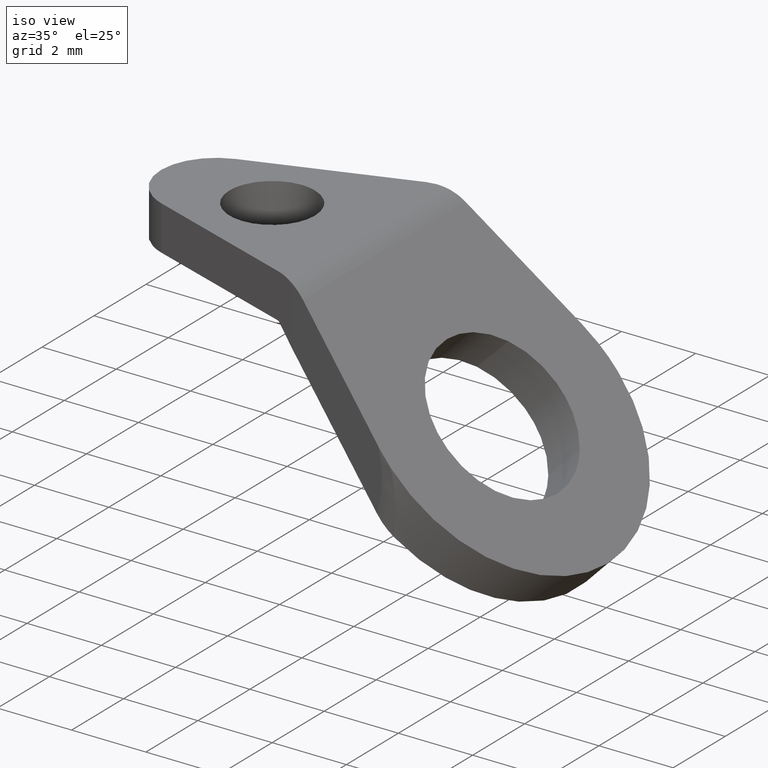
[diagram: clean part render]
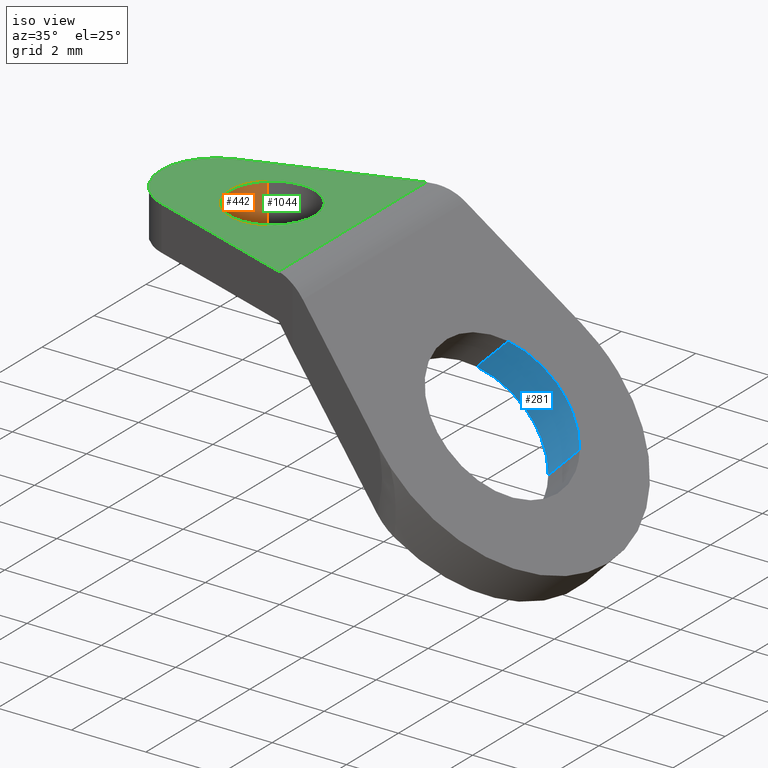
[diagram: same view with three faces highlighted in distinct colors, each labeled with its STEP entity id]
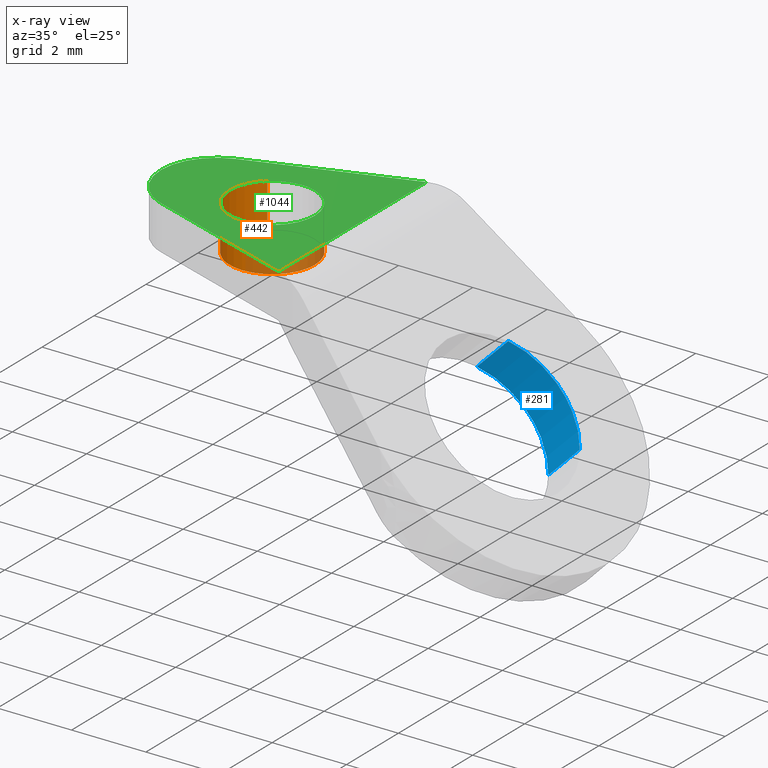
[diagram: x-ray of the same camera — body ghosted, the three highlighted faces saturated]
A machine part, iso view with three faces highlighted in distinct colors.
The next image is the same camera in x-ray (body ghosted, the three faces saturated) — at least one of them is partly hidden behind the body in this view.
Their STEP definitions:

[orange] entity #442 — the highlighted face is a freeform B-spline surface patch.
#282=CARTESIAN_POINT('',(2.257396655860671,0.878088989381535,-1.229999999999980));
#283=CARTESIAN_POINT('',(2.232266126237117,0.856836000716242,-1.229999999999980));
#284=CARTESIAN_POINT('',(2.208392237952183,0.834180526664131,-1.229999999999980));
#285=CARTESIAN_POINT('',(1.374211711288053,0.042572764616314,-1.229999999999980));
#286=CARTESIAN_POINT('',(2.165819473335870,-0.791607762047817,-1.229999999999980));
#287=CARTESIAN_POINT('',(2.957427235383687,-1.625788288711948,-1.229999999999980));
#288=CARTESIAN_POINT('',(3.791607762047817,-0.834180526664131,-1.229999999999980));
#289=CARTESIAN_POINT('',(4.625788288711949,-0.042572764616314,-1.229999999999980));
#290=CARTESIAN_POINT('',(3.834180526664131,0.791607762047817,-1.229999999999980));
#291=CARTESIAN_POINT('',(2.257396655860671,0.878088989381535,0.030749999999999));
#292=CARTESIAN_POINT('',(2.232266126237117,0.856836000716242,0.030749999999999));
#293=CARTESIAN_POINT('',(2.208392237952183,0.834180526664131,0.030749999999999));
#294=CARTESIAN_POINT('',(1.374211711288053,0.042572764616314,0.030749999999999));
#295=CARTESIAN_POINT('',(2.165819473335870,-0.791607762047817,0.030749999999999));
#296=CARTESIAN_POINT('',(2.957427235383687,-1.625788288711948,0.030749999999999));
#297=CARTESIAN_POINT('',(3.791607762047817,-0.834180526664131,0.030749999999999));
#298=CARTESIAN_POINT('',(4.625788288711949,-0.042572764616314,0.030749999999999));
#299=CARTESIAN_POINT('',(3.834180526664131,0.791607762047817,0.030749999999999));
#307=(BOUNDED_SURFACE()B_SPLINE_SURFACE(2,1,((#282,#291),(#283,#292),(#284,#293),(#285,#294),(#286,#295),(#287,#296),(#288,#297),(#289,#298),(#290,#299)),.UNSPECIFIED.,.F.,.F.,.U.)B_SPLINE_SURFACE_WITH_KNOTS((3,2,2,2,3),(2,2),(1.507964473723101,1.570796326794897,3.141592653589793,4.712388980384690,6.283185307179586),(0.0,1.0),.UNSPECIFIED.)GEOMETRIC_REPRESENTATION_ITEM()RATIONAL_B_SPLINE_SURFACE(((0.977505800795127,0.977505800795127),(0.988284271247462,0.988284271247462),(1.0,1.0),(0.707106781186548,0.707106781186548),(1.0,1.0),(0.707106781186548,0.707106781186548),(1.0,1.0),(0.707106781186548,0.707106781186548),(1.0,1.0)))REPRESENTATION_ITEM('')SURFACE());
#308=CARTESIAN_POINT('',(2.257396645125303,0.878089011284641,7.055269E-014));
#309=VERTEX_POINT('',#308);
#310=CARTESIAN_POINT('',(1.850000000000000,0.0,0.0));
#311=VERTEX_POINT('',#310);
#312=CARTESIAN_POINT('',(2.257396645125303,0.878089011284641,7.055269E-014));
#313=CARTESIAN_POINT('',(2.205739655755665,0.834409049767631,6.704310E-014));
#314=CARTESIAN_POINT('',(2.106488754161795,0.734187037332183,5.899046E-014));
#315=CARTESIAN_POINT('',(2.003593784084637,0.582910930296180,4.683573E-014));
#316=CARTESIAN_POINT('',(1.922328658117667,0.413810355659557,3.324883E-014));
#317=CARTESIAN_POINT('',(1.865422351817475,0.228962214507167,1.839666E-014));
#318=CARTESIAN_POINT('',(1.849990564951824,0.078056974173385,6.271721E-015));
#319=CARTESIAN_POINT('',(1.850000000000000,0.0,0.0));
#320=B_SPLINE_CURVE_WITH_KNOTS('',3,(#312,#313,#314,#315,#316,#317,#318,#319),.UNSPECIFIED.,.F.,.U.,(4,1,1,1,1,4),(8.340091E-010,0.202948166690167,0.421507957822102,0.546398815371974,0.764958567454687,0.999129553539077),.UNSPECIFIED.);
#321=EDGE_CURVE('',#309,#311,#320,.T.);
#322=ORIENTED_EDGE('',*,*,#321,.T.);
#323=CARTESIAN_POINT('',(3.000000095957994,-1.149999999999996,0.0));
#324=VERTEX_POINT('',#323);
#325=CARTESIAN_POINT('',(1.850000000000000,0.0,0.0));
#326=CARTESIAN_POINT('',(1.849995733737299,-0.065858072393993,0.0));
#327=CARTESIAN_POINT('',(1.861747765889902,-0.202279214433078,0.0));
#328=CARTESIAN_POINT('',(1.913490659430036,-0.393828322367740,0.0));
#329=CARTESIAN_POINT('',(1.999128393121927,-0.577801947036770,0.0));
#330=CARTESIAN_POINT('',(2.117767285601492,-0.748482472238805,0.0));
#331=CARTESIAN_POINT('',(2.259864293263415,-0.887127909800027,0.0));
#332=CARTESIAN_POINT('',(2.399240345833364,-0.984003244344043,0.0));
#333=CARTESIAN_POINT('',(2.540972832545994,-1.058651287191979,0.0));
#334=CARTESIAN_POINT('',(2.736577365121380,-1.128646108393713,0.0));
#335=CARTESIAN_POINT('',(2.901208784982607,-1.150031352093002,0.0));
#336=CARTESIAN_POINT('',(3.000000095957994,-1.149999999999996,0.0));
#337=B_SPLINE_CURVE_WITH_KNOTS('',3,(#325,#326,#327,#328,#329,#330,#331,#332,#333,#334,#335,#336),.UNSPECIFIED.,.F.,.U.,(4,1,1,1,1,1,1,1,1,4),(4.992136E-009,0.197575024575579,0.409268626623058,0.592735034149310,0.804428561336172,1.030224961049210,1.185466359655716,1.312481819270492,1.510061111307852,1.806427164390308),.UNSPECIFIED.);
#338=EDGE_CURVE('',#311,#324,#337,.T.);
#339=ORIENTED_EDGE('',*,*,#338,.T.);
#340=CARTESIAN_POINT('',(4.150000000000000,0.0,0.0));
#341=VERTEX_POINT('',#340);
#342=CARTESIAN_POINT('',(3.000000095957994,-1.149999999999996,0.0));
#343=CARTESIAN_POINT('',(3.084676736940991,-1.150015389845509,0.0));
#344=CARTESIAN_POINT('',(3.230500345942492,-1.133818323438868,0.0));
#345=CARTESIAN_POINT('',(3.419813912129487,-1.075113972273720,0.0));
#346=CARTESIAN_POINT('',(3.594062878223517,-0.991398826243255,0.0));
#347=CARTESIAN_POINT('',(3.755772611346387,-0.876019656899940,0.0));
#348=CARTESIAN_POINT('',(3.892507548240860,-0.732390550343694,0.0));
#349=CARTESIAN_POINT('',(3.984003456334133,-0.600759882569647,0.0));
#350=CARTESIAN_POINT('',(4.058651018011729,-0.459027276261695,0.0));
#351=CARTESIAN_POINT('',(4.128648193416655,-0.263423018173053,0.0));
#352=CARTESIAN_POINT('',(4.150029215653207,-0.098791068567639,0.0));
#353=CARTESIAN_POINT('',(4.150000000000000,0.0,0.0));
#354=B_SPLINE_CURVE_WITH_KNOTS('',3,(#342,#343,#344,#345,#346,#347,#348,#349,#350,#351,#352,#353),.UNSPECIFIED.,.F.,.U.,(4,1,1,1,1,1,1,1,1,4),(5.024718E-009,0.254027866407136,0.437494011310621,0.592734998670223,0.832653790514736,1.030224899312096,1.185466288636504,1.312481740666482,1.510061020858998,1.806427056222610),.UNSPECIFIED.);
#355=EDGE_CURVE('',#324,#341,#354,.T.);
#356=ORIENTED_EDGE('',*,*,#355,.T.);
#357=CARTESIAN_POINT('',(3.834180503765110,0.791607751375618,-1.140702E-013));
#358=VERTEX_POINT('',#357);
#359=CARTESIAN_POINT('',(4.150000000000000,0.0,0.0));
#360=CARTESIAN_POINT('',(4.150022462674238,0.090950465830037,-1.310591E-014));
#361=CARTESIAN_POINT('',(4.129931282624750,0.259192954954590,-3.734955E-014));
#362=CARTESIAN_POINT('',(4.058683431471126,0.461849181622735,-6.655220E-014));
#363=CARTESIAN_POINT('',(3.962890267030388,0.637916348440517,-9.192337E-014));
#364=CARTESIAN_POINT('',(3.887403634095691,0.735539420084780,-1.059908E-013));
#365=CARTESIAN_POINT('',(3.834180503765110,0.791607751375618,-1.140702E-013));
#366=B_SPLINE_CURVE_WITH_KNOTS('',3,(#359,#360,#361,#362,#363,#364,#365),.UNSPECIFIED.,.F.,.U.,(4,1,1,1,4),(1.860830E-009,0.272846283516833,0.504762820959792,0.641187224535713,0.873106076452951),.UNSPECIFIED.);
#367=EDGE_CURVE('',#341,#358,#366,.T.);
#368=ORIENTED_EDGE('',*,*,#367,.T.);
#369=CARTESIAN_POINT('',(3.834180503832417,0.791607751304693,-1.199999999999980));
#370=VERTEX_POINT('',#369);
#371=CARTESIAN_POINT('',(3.834180503832417,0.791607751304693,-1.199999999999980));
#372=CARTESIAN_POINT('',(3.834180503765110,0.791607751375618,-1.140702E-013));
#373=QUASI_UNIFORM_CURVE('',1,(#371,#372),.UNSPECIFIED.,.F.,.U.);
#374=EDGE_CURVE('',#370,#358,#373,.T.);
#375=ORIENTED_EDGE('',*,*,#374,.F.);
#376=CARTESIAN_POINT('',(4.150000000000000,0.0,-1.199999999999980));
#377=VERTEX_POINT('',#376);
#378=CARTESIAN_POINT('',(4.150000000000000,0.0,-1.199999999999980));
#379=CARTESIAN_POINT('',(4.150041179042349,0.109143095378135,-1.199999999999980));
#380=CARTESIAN_POINT('',(4.125864477503170,0.277370279307372,-1.199999999999977));
#381=CARTESIAN_POINT('',(4.046737304727824,0.486384003738563,-1.199999999999982));
#382=CARTESIAN_POINT('',(3.957701196718726,0.645526566593393,-1.199999999999978));
#383=CARTESIAN_POINT('',(3.881138719804661,0.742133393169809,-1.199999999999981));
#384=CARTESIAN_POINT('',(3.834180503832417,0.791607751304693,-1.199999999999980));
#385=B_SPLINE_CURVE_WITH_KNOTS('',3,(#378,#379,#380,#381,#382,#383,#384),.UNSPECIFIED.,.F.,.U.,(4,1,1,1,4),(1.860482E-009,0.327414858045688,0.504762820903208,0.668471890999660,0.873106076355171),.UNSPECIFIED.);
#386=EDGE_CURVE('',#377,#370,#385,.T.);
#387=ORIENTED_EDGE('',*,*,#386,.F.);
#388=CARTESIAN_POINT('',(3.000000095957994,-1.149999999999996,-1.199999999999980));
#389=VERTEX_POINT('',#388);
#390=CARTESIAN_POINT('',(3.000000095957994,-1.149999999999996,-1.199999999999980));
#391=CARTESIAN_POINT('',(3.084676736940991,-1.150015389845509,-1.199999999999977));
#392=CARTESIAN_POINT('',(3.230500345942492,-1.133818323438868,-1.199999999999988));
#393=CARTESIAN_POINT('',(3.419813912129487,-1.075113972273720,-1.199999999999974));
#394=CARTESIAN_POINT('',(3.594062878223517,-0.991398826243255,-1.199999999999986));
#395=CARTESIAN_POINT('',(3.755772611346387,-0.876019656899940,-1.199999999999991));
#396=CARTESIAN_POINT('',(3.892507548240860,-0.732390550343694,-1.199999999999969));
#397=CARTESIAN_POINT('',(3.984003456334133,-0.600759882569647,-1.199999999999989));
#398=CARTESIAN_POINT('',(4.058651018011729,-0.459027276261695,-1.199999999999964));
#399=CARTESIAN_POINT('',(4.128648193416655,-0.263423018173053,-1.199999999999990));
#400=CARTESIAN_POINT('',(4.150029215653207,-0.098791068567639,-1.199999999999980));
#401=CARTESIAN_POINT('',(4.150000000000000,0.0,-1.199999999999980));
#402=B_SPLINE_CURVE_WITH_KNOTS('',3,(#390,#391,#392,#393,#394,#395,#396,#397,#398,#399,#400,#401),.UNSPECIFIED.,.F.,.U.,(4,1,1,1,1,1,1,1,1,4),(5.024718E-009,0.254027866407136,0.437494011310621,0.592734998670223,0.832653790514736,1.030224899312096,1.185466288636504,1.312481740666482,1.510061020858998,1.806427056222610),.UNSPECIFIED.);
#403=EDGE_CURVE('',#389,#377,#402,.T.);
#404=ORIENTED_EDGE('',*,*,#403,.F.);
#405=CARTESIAN_POINT('',(1.850000000000000,0.0,-1.199999999999980));
#406=VERTEX_POINT('',#405);
#407=CARTESIAN_POINT('',(1.850000000000000,0.0,-1.199999999999980));
#408=CARTESIAN_POINT('',(1.849995733737299,-0.065858072393993,-1.199999999999984));
#409=CARTESIAN_POINT('',(1.861747765889902,-0.202279214433078,-1.199999999999970));
#410=CARTESIAN_POINT('',(1.913490659430036,-0.393828322367740,-1.199999999999982));
#411=CARTESIAN_POINT('',(1.999128393121927,-0.577801947036770,-1.199999999999982));
#412=CARTESIAN_POINT('',(2.117767285601492,-0.748482472238805,-1.199999999999976));
#413=CARTESIAN_POINT('',(2.259864293263415,-0.887127909800027,-1.199999999999981));
#414=CARTESIAN_POINT('',(2.399240345833364,-0.984003244344044,-1.199999999999982));
#415=CARTESIAN_POINT('',(2.540972832545994,-1.058651287191978,-1.199999999999974));
#416=CARTESIAN_POINT('',(2.736577365121380,-1.128646108393714,-1.200000000000002));
#417=CARTESIAN_POINT('',(2.901208784982607,-1.150031352093001,-1.199999999999960));
#418=CARTESIAN_POINT('',(3.000000095957994,-1.149999999999996,-1.199999999999980));
#419=B_SPLINE_CURVE_WITH_KNOTS('',3,(#407,#408,#409,#410,#411,#412,#413,#414,#415,#416,#417,#418),.UNSPECIFIED.,.F.,.U.,(4,1,1,1,1,1,1,1,1,4),(4.992136E-009,0.197575024575579,0.409268626623058,0.592735034149310,0.804428561336172,1.030224961049210,1.185466359655716,1.312481819270492,1.510061111307852,1.806427164390308),.UNSPECIFIED.);
#420=EDGE_CURVE('',#406,#389,#419,.T.);
#421=ORIENTED_EDGE('',*,*,#420,.F.);
#422=CARTESIAN_POINT('',(2.257396645068195,0.878089011236345,-1.199999999999980));
#423=VERTEX_POINT('',#422);
#424=CARTESIAN_POINT('',(2.257396645068195,0.878089011236345,-1.199999999999980));
#425=CARTESIAN_POINT('',(2.181883247451196,0.814261692237525,-1.199999999999981));
#426=CARTESIAN_POINT('',(2.079331976542018,0.701849605720580,-1.199999999999977));
#427=CARTESIAN_POINT('',(1.968842865710617,0.518754804333681,-1.199999999999984));
#428=CARTESIAN_POINT('',(1.908761001808731,0.374106287659650,-1.199999999999974));
#429=CARTESIAN_POINT('',(1.862236691786223,0.197738380726222,-1.199999999999983));
#430=CARTESIAN_POINT('',(1.849987245462916,0.078057744320814,-1.199999999999979));
#431=CARTESIAN_POINT('',(1.850000000000000,0.0,-1.199999999999980));
#432=B_SPLINE_CURVE_WITH_KNOTS('',3,(#424,#425,#426,#427,#428,#429,#430,#431),.UNSPECIFIED.,.F.,.U.,(4,1,1,1,1,4),(8.339613E-010,0.296616611308585,0.452730738969260,0.640067260002258,0.764958567397399,0.999129553464286),.UNSPECIFIED.);
#433=EDGE_CURVE('',#423,#406,#432,.T.);
#434=ORIENTED_EDGE('',*,*,#433,.F.);
#435=CARTESIAN_POINT('',(2.257396645068195,0.878089011236345,-1.199999999999980));
#436=CARTESIAN_POINT('',(2.257396645125303,0.878089011284641,7.055269E-014));
#437=QUASI_UNIFORM_CURVE('',1,(#435,#436),.UNSPECIFIED.,.F.,.U.);
#438=EDGE_CURVE('',#423,#309,#437,.T.);
#439=ORIENTED_EDGE('',*,*,#438,.T.);
#440=EDGE_LOOP('',(#322,#339,#356,#368,#375,#387,#404,#421,#434,#439));
#441=FACE_OUTER_BOUND('',#440,.T.);
#442=ADVANCED_FACE('',(#441),#307,.F.);

[blue] entity #281 — the highlighted face is a freeform B-spline surface patch.
#70=CARTESIAN_POINT('',(8.235591850579276,1.603466874816024,-2.574574850578886));
#71=VERTEX_POINT('',#70);
#122=CARTESIAN_POINT('',(10.271595845243260,1.445544581322798,-4.610578845243389));
#123=VERTEX_POINT('',#122);
#136=CARTESIAN_POINT('',(9.423067845222908,1.445544581353193,-5.459106845222951));
#137=VERTEX_POINT('',#136);
#138=CARTESIAN_POINT('',(9.423067845222908,1.445544581353193,-5.459106845222951));
#139=CARTESIAN_POINT('',(10.271595845243260,1.445544581322798,-4.610578845243389));
#140=QUASI_UNIFORM_CURVE('',1,(#138,#139),.UNSPECIFIED.,.F.,.U.);
#141=EDGE_CURVE('',#137,#123,#140,.T.);
#194=CARTESIAN_POINT('',(7.387063850608470,1.603466874851186,-3.423102850608493));
#195=VERTEX_POINT('',#194);
#208=CARTESIAN_POINT('',(7.387063850608470,1.603466874851186,-3.423102850608493));
#209=CARTESIAN_POINT('',(8.235591850579276,1.603466874816024,-2.574574850578886));
#210=QUASI_UNIFORM_CURVE('',1,(#208,#209),.UNSPECIFIED.,.F.,.U.);
#211=EDGE_CURVE('',#195,#71,#210,.T.);
#216=CARTESIAN_POINT('',(9.401854662201101,1.445544608956883,-5.480320062201150));
#217=CARTESIAN_POINT('',(8.436579642699968,2.884065152167646,-4.515045042700018));
#218=CARTESIAN_POINT('',(7.365850669355479,1.603466850174976,-3.444316069355526));
#219=CARTESIAN_POINT('',(10.293339392201130,1.445544608956883,-4.588835332201121));
#220=CARTESIAN_POINT('',(9.328064372699995,2.884065152167646,-3.623560312699989));
#221=CARTESIAN_POINT('',(8.257335399355505,1.603466850174976,-2.552831339355498));
#229=(BOUNDED_SURFACE()B_SPLINE_SURFACE(2,1,((#216,#219),(#217,#220),(#218,#221)),.UNSPECIFIED.,.F.,.F.,.U.)B_SPLINE_SURFACE_WITH_KNOTS((3,3),(2,2),(0.0,3.339301473288457),(0.0,1.0),.UNSPECIFIED.)GEOMETRIC_REPRESENTATION_ITEM()RATIONAL_B_SPLINE_SURFACE(((1.0,1.0),(0.718822509939086,0.718822509939086),(0.977505800795127,0.977505800795127)))REPRESENTATION_ITEM('')SURFACE());
#230=CARTESIAN_POINT('',(9.194469772106512,2.099999999999995,-3.533452772106522));
#231=VERTEX_POINT('',#230);
#232=CARTESIAN_POINT('',(9.194469772106512,2.099999999999995,-3.533452772106522));
#233=CARTESIAN_POINT('',(9.066879292262605,2.100056053855538,-3.405862292262545));
#234=CARTESIAN_POINT('',(8.847016053984845,2.059662648529355,-3.185999053984734));
#235=CARTESIAN_POINT('',(8.590998657658798,1.927081717747472,-2.929981657658548));
#236=CARTESIAN_POINT('',(8.397388278274454,1.778788508760363,-2.736371278274129));
#237=CARTESIAN_POINT('',(8.293626167466236,1.672884656095484,-2.632609167465882));
#238=CARTESIAN_POINT('',(8.235591850579276,1.603466874816024,-2.574574850578886));
#239=B_SPLINE_CURVE_WITH_KNOTS('',3,(#232,#233,#234,#235,#236,#237,#238),.UNSPECIFIED.,.F.,.U.,(4,1,1,1,4),(1.447692E-009,0.541305286131632,0.932885312346121,1.151711643646799,1.474190597031978),.UNSPECIFIED.);
#240=EDGE_CURVE('',#231,#71,#239,.T.);
#241=ORIENTED_EDGE('',*,*,#240,.T.);
#242=ORIENTED_EDGE('',*,*,#211,.F.);
#243=CARTESIAN_POINT('',(8.345941772106503,2.099999999999995,-4.381980772106536));
#244=VERTEX_POINT('',#243);
#245=CARTESIAN_POINT('',(8.345941772106503,2.099999999999995,-4.381980772106536));
#246=CARTESIAN_POINT('',(8.248215121006890,2.100017859244201,-4.284254121006932));
#247=CARTESIAN_POINT('',(8.077199154408342,2.076034449428291,-4.113238154408362));
#248=CARTESIAN_POINT('',(7.833318996703436,1.980033937789083,-3.869357996703446));
#249=CARTESIAN_POINT('',(7.605308864348141,1.833016570318219,-3.641347864348222));
#250=CARTESIAN_POINT('',(7.459604301694251,1.690244323089863,-3.495643301694235));
#251=CARTESIAN_POINT('',(7.387063850608470,1.603466874851186,-3.423102850608493));
#252=B_SPLINE_CURVE_WITH_KNOTS('',3,(#245,#246,#247,#248,#249,#250,#251),.UNSPECIFIED.,.F.,.U.,(4,1,1,1,4),(1.445442E-009,0.414616345837987,0.725580396706756,1.071091487163234,1.474190596977527),.UNSPECIFIED.);
#253=EDGE_CURVE('',#244,#195,#252,.T.);
#254=ORIENTED_EDGE('',*,*,#253,.F.);
#255=CARTESIAN_POINT('',(9.423067845222908,1.445544581353193,-5.459106845222951));
#256=CARTESIAN_POINT('',(9.379862834312775,1.509934334927992,-5.415901834312821));
#257=CARTESIAN_POINT('',(9.278450192443749,1.643056901295816,-5.314489192443799));
#258=CARTESIAN_POINT('',(9.115772546605246,1.803399538807697,-5.151811546605281));
#259=CARTESIAN_POINT('',(8.936585758041426,1.932873561495448,-4.972624758041469));
#260=CARTESIAN_POINT('',(8.747185158801964,2.029306440088177,-4.783224158801970));
#261=CARTESIAN_POINT('',(8.546797087727617,2.087602493734043,-4.582836087727698));
#262=CARTESIAN_POINT('',(8.408708824724569,2.100002406297277,-4.444747824724555));
#263=CARTESIAN_POINT('',(8.345941772106503,2.099999999999995,-4.381980772106536));
#264=B_SPLINE_CURVE_WITH_KNOTS('',3,(#255,#256,#257,#258,#259,#260,#261,#262,#263),.UNSPECIFIED.,.F.,.U.,(4,1,1,1,1,1,4),(2.173743E-009,0.266298497328501,0.585860007901818,0.838845993157167,1.118456998212548,1.438018508786107,1.704317003941959),.UNSPECIFIED.);
#265=EDGE_CURVE('',#137,#244,#264,.T.);
#266=ORIENTED_EDGE('',*,*,#265,.F.);
#267=ORIENTED_EDGE('',*,*,#141,.T.);
#268=CARTESIAN_POINT('',(10.271595845243260,1.445544581322798,-4.610578845243389));
#269=CARTESIAN_POINT('',(10.195999765071640,1.558248831821021,-4.534982765071733));
#270=CARTESIAN_POINT('',(10.051142291953610,1.730944371487500,-4.390125291953767));
#271=CARTESIAN_POINT('',(9.809408547955144,1.922356886032685,-4.148391547955160));
#272=CARTESIAN_POINT('',(9.619465140279223,2.018096273693524,-3.958448140279300));
#273=CARTESIAN_POINT('',(9.411013806665050,2.083624745943762,-3.749996806665094));
#274=CARTESIAN_POINT('',(9.285483291861102,2.100014594720554,-3.624466291861141));
#275=CARTESIAN_POINT('',(9.194469772106512,2.099999999999995,-3.533452772106522));
#276=B_SPLINE_CURVE_WITH_KNOTS('',3,(#268,#269,#270,#271,#272,#273,#274,#275),.UNSPECIFIED.,.F.,.U.,(4,1,1,1,1,4),(2.172594E-009,0.466024286069416,0.798900981733146,1.171717897145276,1.318182786975217,1.704317003983862),.UNSPECIFIED.);
#277=EDGE_CURVE('',#123,#231,#276,.T.);
#278=ORIENTED_EDGE('',*,*,#277,.T.);
#279=EDGE_LOOP('',(#241,#242,#254,#266,#267,#278));
#280=FACE_OUTER_BOUND('',#279,.T.);
#281=ADVANCED_FACE('',(#280),#229,.F.);

[green] entity #1044 — the highlighted face is a freeform B-spline surface patch.
#308=CARTESIAN_POINT('',(2.257396645125303,0.878089011284641,7.055269E-014));
#309=VERTEX_POINT('',#308);
#310=CARTESIAN_POINT('',(1.850000000000000,0.0,0.0));
#311=VERTEX_POINT('',#310);
#312=CARTESIAN_POINT('',(2.257396645125303,0.878089011284641,7.055269E-014));
#313=CARTESIAN_POINT('',(2.205739655755665,0.834409049767631,6.704310E-014));
#314=CARTESIAN_POINT('',(2.106488754161795,0.734187037332183,5.899046E-014));
#315=CARTESIAN_POINT('',(2.003593784084637,0.582910930296180,4.683573E-014));
#316=CARTESIAN_POINT('',(1.922328658117667,0.413810355659557,3.324883E-014));
#317=CARTESIAN_POINT('',(1.865422351817475,0.228962214507167,1.839666E-014));
#318=CARTESIAN_POINT('',(1.849990564951824,0.078056974173385,6.271721E-015));
#319=CARTESIAN_POINT('',(1.850000000000000,0.0,0.0));
#320=B_SPLINE_CURVE_WITH_KNOTS('',3,(#312,#313,#314,#315,#316,#317,#318,#319),.UNSPECIFIED.,.F.,.U.,(4,1,1,1,1,4),(8.340091E-010,0.202948166690167,0.421507957822102,0.546398815371974,0.764958567454687,0.999129553539077),.UNSPECIFIED.);
#321=EDGE_CURVE('',#309,#311,#320,.T.);
#323=CARTESIAN_POINT('',(3.000000095957994,-1.149999999999996,0.0));
#324=VERTEX_POINT('',#323);
#325=CARTESIAN_POINT('',(1.850000000000000,0.0,0.0));
#326=CARTESIAN_POINT('',(1.849995733737299,-0.065858072393993,0.0));
#327=CARTESIAN_POINT('',(1.861747765889902,-0.202279214433078,0.0));
#328=CARTESIAN_POINT('',(1.913490659430036,-0.393828322367740,0.0));
#329=CARTESIAN_POINT('',(1.999128393121927,-0.577801947036770,0.0));
#330=CARTESIAN_POINT('',(2.117767285601492,-0.748482472238805,0.0));
#331=CARTESIAN_POINT('',(2.259864293263415,-0.887127909800027,0.0));
#332=CARTESIAN_POINT('',(2.399240345833364,-0.984003244344043,0.0));
#333=CARTESIAN_POINT('',(2.540972832545994,-1.058651287191979,0.0));
#334=CARTESIAN_POINT('',(2.736577365121380,-1.128646108393713,0.0));
#335=CARTESIAN_POINT('',(2.901208784982607,-1.150031352093002,0.0));
#336=CARTESIAN_POINT('',(3.000000095957994,-1.149999999999996,0.0));
#337=B_SPLINE_CURVE_WITH_KNOTS('',3,(#325,#326,#327,#328,#329,#330,#331,#332,#333,#334,#335,#336),.UNSPECIFIED.,.F.,.U.,(4,1,1,1,1,1,1,1,1,4),(4.992136E-009,0.197575024575579,0.409268626623058,0.592735034149310,0.804428561336172,1.030224961049210,1.185466359655716,1.312481819270492,1.510061111307852,1.806427164390308),.UNSPECIFIED.);
#338=EDGE_CURVE('',#311,#324,#337,.T.);
#340=CARTESIAN_POINT('',(4.150000000000000,0.0,0.0));
#341=VERTEX_POINT('',#340);
#342=CARTESIAN_POINT('',(3.000000095957994,-1.149999999999996,0.0));
#343=CARTESIAN_POINT('',(3.084676736940991,-1.150015389845509,0.0));
#344=CARTESIAN_POINT('',(3.230500345942492,-1.133818323438868,0.0));
#345=CARTESIAN_POINT('',(3.419813912129487,-1.075113972273720,0.0));
#346=CARTESIAN_POINT('',(3.594062878223517,-0.991398826243255,0.0));
#347=CARTESIAN_POINT('',(3.755772611346387,-0.876019656899940,0.0));
#348=CARTESIAN_POINT('',(3.892507548240860,-0.732390550343694,0.0));
#349=CARTESIAN_POINT('',(3.984003456334133,-0.600759882569647,0.0));
#350=CARTESIAN_POINT('',(4.058651018011729,-0.459027276261695,0.0));
#351=CARTESIAN_POINT('',(4.128648193416655,-0.263423018173053,0.0));
#352=CARTESIAN_POINT('',(4.150029215653207,-0.098791068567639,0.0));
#353=CARTESIAN_POINT('',(4.150000000000000,0.0,0.0));
#354=B_SPLINE_CURVE_WITH_KNOTS('',3,(#342,#343,#344,#345,#346,#347,#348,#349,#350,#351,#352,#353),.UNSPECIFIED.,.F.,.U.,(4,1,1,1,1,1,1,1,1,4),(5.024718E-009,0.254027866407136,0.437494011310621,0.592734998670223,0.832653790514736,1.030224899312096,1.185466288636504,1.312481740666482,1.510061020858998,1.806427056222610),.UNSPECIFIED.);
#355=EDGE_CURVE('',#324,#341,#354,.T.);
#357=CARTESIAN_POINT('',(3.834180503765110,0.791607751375618,-1.140702E-013));
#358=VERTEX_POINT('',#357);
#359=CARTESIAN_POINT('',(4.150000000000000,0.0,0.0));
#360=CARTESIAN_POINT('',(4.150022462674238,0.090950465830037,-1.310591E-014));
#361=CARTESIAN_POINT('',(4.129931282624750,0.259192954954590,-3.734955E-014));
#362=CARTESIAN_POINT('',(4.058683431471126,0.461849181622735,-6.655220E-014));
#363=CARTESIAN_POINT('',(3.962890267030388,0.637916348440517,-9.192337E-014));
#364=CARTESIAN_POINT('',(3.887403634095691,0.735539420084780,-1.059908E-013));
#365=CARTESIAN_POINT('',(3.834180503765110,0.791607751375618,-1.140702E-013));
#366=B_SPLINE_CURVE_WITH_KNOTS('',3,(#359,#360,#361,#362,#363,#364,#365),.UNSPECIFIED.,.F.,.U.,(4,1,1,1,4),(1.860830E-009,0.272846283516833,0.504762820959792,0.641187224535713,0.873106076452951),.UNSPECIFIED.);
#367=EDGE_CURVE('',#341,#358,#366,.T.);
#457=CARTESIAN_POINT('',(2.999999904042019,1.149999999999996,0.0));
#458=VERTEX_POINT('',#457);
#459=CARTESIAN_POINT('',(2.999999904042019,1.149999999999996,0.0));
#460=CARTESIAN_POINT('',(2.911700165090112,1.150019688439311,8.389115E-015));
#461=CARTESIAN_POINT('',(2.764547513506225,1.132961985987261,2.236968E-014));
#462=CARTESIAN_POINT('',(2.567579770478410,1.070491806315440,4.108305E-014));
#463=CARTESIAN_POINT('',(2.405151555119990,0.989874757375346,5.651490E-014));
#464=CARTESIAN_POINT('',(2.305551024632372,0.918819884379767,6.597768E-014));
#465=CARTESIAN_POINT('',(2.257396645125303,0.878089011284641,7.055269E-014));
#466=B_SPLINE_CURVE_WITH_KNOTS('',3,(#459,#460,#461,#462,#463,#464,#465),.UNSPECIFIED.,.F.,.U.,(4,1,1,1,4),(1.914153E-009,0.264894770381498,0.441489183136998,0.618087493210957,0.807297862775320),.UNSPECIFIED.);
#467=EDGE_CURVE('',#458,#309,#466,.T.);
#493=CARTESIAN_POINT('',(3.834180503765110,0.791607751375618,-1.140702E-013));
#494=CARTESIAN_POINT('',(3.763933031366098,0.865680455635523,-1.044642E-013));
#495=CARTESIAN_POINT('',(3.637901921757412,0.967199835986513,-8.723005E-014));
#496=CARTESIAN_POINT('',(3.433527290462492,1.070799010872531,-5.928280E-014));
#497=CARTESIAN_POINT('',(3.233324209413676,1.133686691705895,-3.190598E-014));
#498=CARTESIAN_POINT('',(3.082638133760466,1.150013492666034,-1.130038E-014));
#499=CARTESIAN_POINT('',(2.999999904042019,1.149999999999996,0.0));
#500=B_SPLINE_CURVE_WITH_KNOTS('',3,(#493,#494,#495,#496,#497,#498,#499),.UNSPECIFIED.,.F.,.U.,(4,1,1,1,4),(1.417517E-009,0.306246725953228,0.481243175432106,0.685407689785461,0.933321148760986),.UNSPECIFIED.);
#501=EDGE_CURVE('',#358,#458,#500,.T.);
#676=CARTESIAN_POINT('',(5.163960725152310,-2.846130712025095,0.0));
#677=VERTEX_POINT('',#676);
#678=CARTESIAN_POINT('',(5.163960725152310,2.846130712025075,0.0));
#679=VERTEX_POINT('',#678);
#680=CARTESIAN_POINT('',(5.163960725152310,-2.846130712025095,0.0));
#681=CARTESIAN_POINT('',(5.163960725152310,2.846130712025075,0.0));
#682=QUASI_UNIFORM_CURVE('',1,(#680,#681),.UNSPECIFIED.,.F.,.U.);
#683=EDGE_CURVE('',#677,#679,#682,.T.);
#992=CARTESIAN_POINT('',(-0.257940387923988,3.130459031917162,0.0));
#993=CARTESIAN_POINT('',(5.421900718500680,3.130459031917162,0.0));
#994=CARTESIAN_POINT('',(-0.257940387923988,-3.130458879238834,0.0));
#995=CARTESIAN_POINT('',(5.421900718500680,-3.130458879238834,0.0));
#996=B_SPLINE_SURFACE_WITH_KNOTS('',1,1,((#992,#994),(#993,#995)),.UNSPECIFIED.,.F.,.F.,.U.,(2,2),(2,2),(0.0,5.679841106424668),(0.0,6.260917911155996),.UNSPECIFIED.);
#997=CARTESIAN_POINT('',(1.012229000000000,-1.418478000000000,0.0));
#998=VERTEX_POINT('',#997);
#999=CARTESIAN_POINT('',(1.012229000000000,-1.418478000000000,0.0));
#1000=CARTESIAN_POINT('',(5.163960725152310,-2.846130712025095,0.0));
#1001=QUASI_UNIFORM_CURVE('',1,(#999,#1000),.UNSPECIFIED.,.F.,.U.);
#1002=EDGE_CURVE('',#998,#677,#1001,.T.);
#1003=ORIENTED_EDGE('',*,*,#1002,.T.);
#1004=ORIENTED_EDGE('',*,*,#683,.T.);
#1005=CARTESIAN_POINT('',(1.012229000000000,1.418478000000022,0.0));
#1006=VERTEX_POINT('',#1005);
#1007=CARTESIAN_POINT('',(5.163960725152310,2.846130712025075,0.0));
#1008=CARTESIAN_POINT('',(1.012229000000000,1.418478000000022,0.0));
#1009=QUASI_UNIFORM_CURVE('',1,(#1007,#1008),.UNSPECIFIED.,.F.,.U.);
#1010=EDGE_CURVE('',#679,#1006,#1009,.T.);
#1011=ORIENTED_EDGE('',*,*,#1010,.T.);
#1012=CARTESIAN_POINT('',(1.012229000000000,1.418478000000022,0.0));
#1013=CARTESIAN_POINT('',(0.952703652222031,1.398010341415028,0.0));
#1014=CARTESIAN_POINT('',(0.822791793713668,1.343978713042982,0.0));
#1015=CARTESIAN_POINT('',(0.630548703714128,1.230163824158084,0.0));
#1016=CARTESIAN_POINT('',(0.462535850635194,1.090254167574696,0.0));
#1017=CARTESIAN_POINT('',(0.325775986933856,0.939266887715008,0.0));
#1018=CARTESIAN_POINT('',(0.222209150665250,0.792638145785863,0.0));
#1019=CARTESIAN_POINT('',(0.125632050350283,0.613270249834105,0.0));
#1020=CARTESIAN_POINT('',(0.054993344737317,0.421826692903156,0.0));
#1021=CARTESIAN_POINT('',(0.006855359450096,0.193972956471829,0.0));
#1022=CARTESIAN_POINT('',(-0.006701518920103,-0.038940179302311,0.0));
#1023=CARTESIAN_POINT('',(0.017604886549204,-0.256219994765312,0.0));
#1024=CARTESIAN_POINT('',(0.068744898471855,-0.463307695502424,0.0));
#1025=CARTESIAN_POINT('',(0.143076259138221,-0.653347606955470,0.0));
#1026=CARTESIAN_POINT('',(0.260443508761810,-0.854673397436776,0.0));
#1027=CARTESIAN_POINT('',(0.421869017294816,-1.055175479894425,0.0));
#1028=CARTESIAN_POINT('',(0.665834034120342,-1.264407628084007,0.0));
#1029=CARTESIAN_POINT('',(0.883998291585874,-1.374432482393528,0.0));
#1030=CARTESIAN_POINT('',(1.012229000000000,-1.418478000000000,0.0));
#1031=B_SPLINE_CURVE_WITH_KNOTS('',3,(#1012,#1013,#1014,#1015,#1016,#1017,#1018,#1019,#1020,#1021,#1022,#1023,#1024,#1025,#1026,#1027,#1028,#1029,#1030),.UNSPECIFIED.,.F.,.U.,(4,1,1,1,1,1,1,1,1,1,1,1,1,1,1,1,4),(0.000000012032656,0.188838855707386,0.421265428939369,0.668219439203838,0.842539738525434,1.031385964403177,1.205704665535302,1.452655805103933,1.641500714309574,1.902970982504236,2.149928298324233,2.295191050466457,2.542145539333160,2.760043984014925,2.992468946729540,3.312052961141323,3.718796031456741),.UNSPECIFIED.);
#1032=EDGE_CURVE('',#1006,#998,#1031,.T.);
#1033=ORIENTED_EDGE('',*,*,#1032,.T.);
#1034=EDGE_LOOP('',(#1003,#1004,#1011,#1033));
#1035=FACE_OUTER_BOUND('',#1034,.T.);
#1036=ORIENTED_EDGE('',*,*,#338,.F.);
#1037=ORIENTED_EDGE('',*,*,#321,.F.);
#1038=ORIENTED_EDGE('',*,*,#467,.F.);
#1039=ORIENTED_EDGE('',*,*,#501,.F.);
#1040=ORIENTED_EDGE('',*,*,#367,.F.);
#1041=ORIENTED_EDGE('',*,*,#355,.F.);
#1042=EDGE_LOOP('',(#1036,#1037,#1038,#1039,#1040,#1041));
#1043=FACE_BOUND('',#1042,.T.);
#1044=ADVANCED_FACE('',(#1035,#1043),#996,.F.);